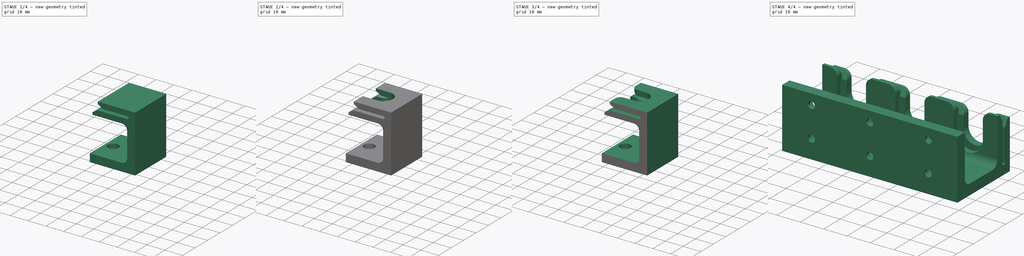
[diagram: build sequence overview — one tinted view per stage of 4, left to right]
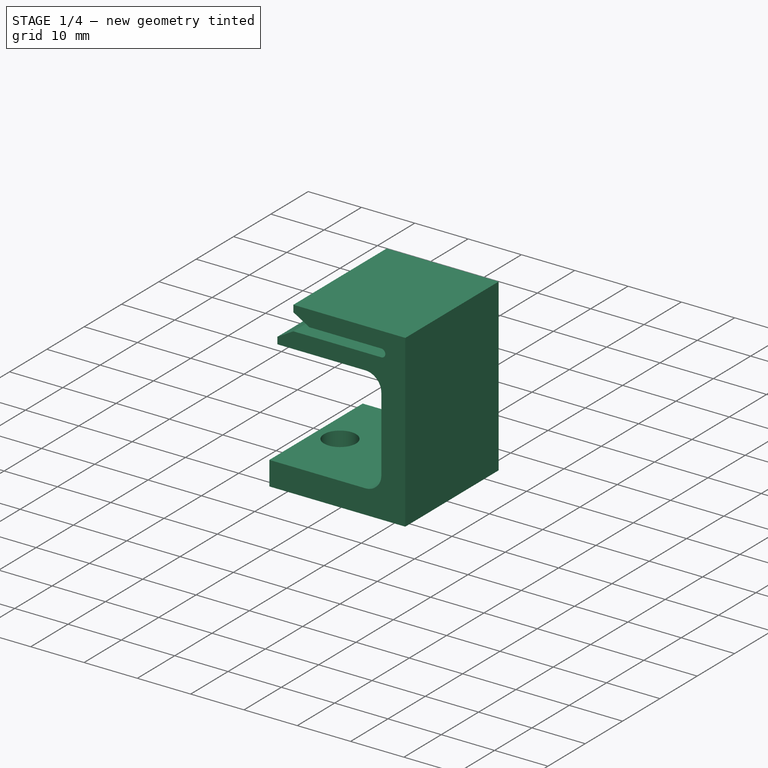
[diagram: stage 1 of 4 — iso view after this stage's code; geometry added in this stage tinted green]
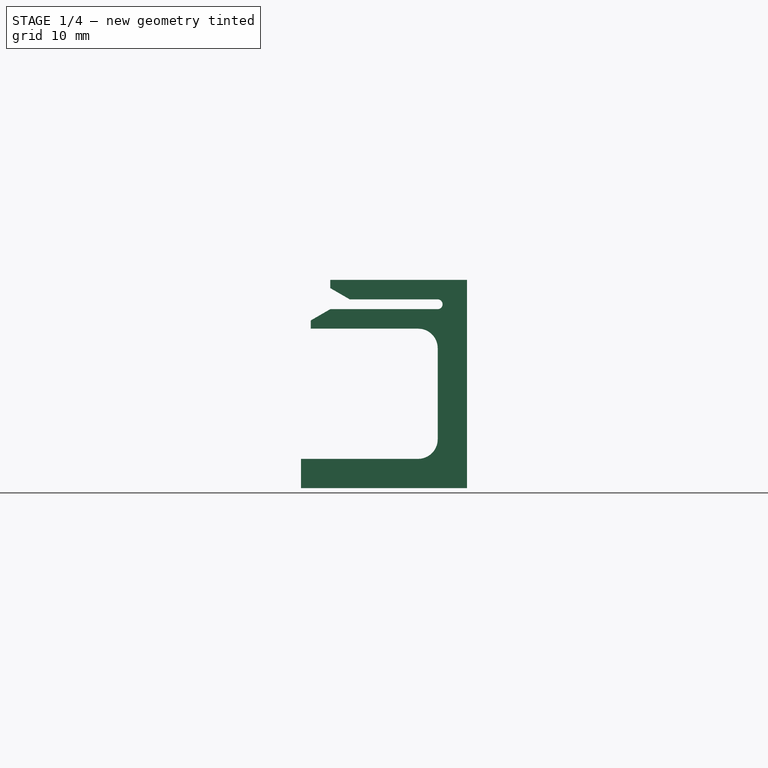
[diagram: stage 1 of 4 — front view after this stage's code; geometry added in this stage tinted green]
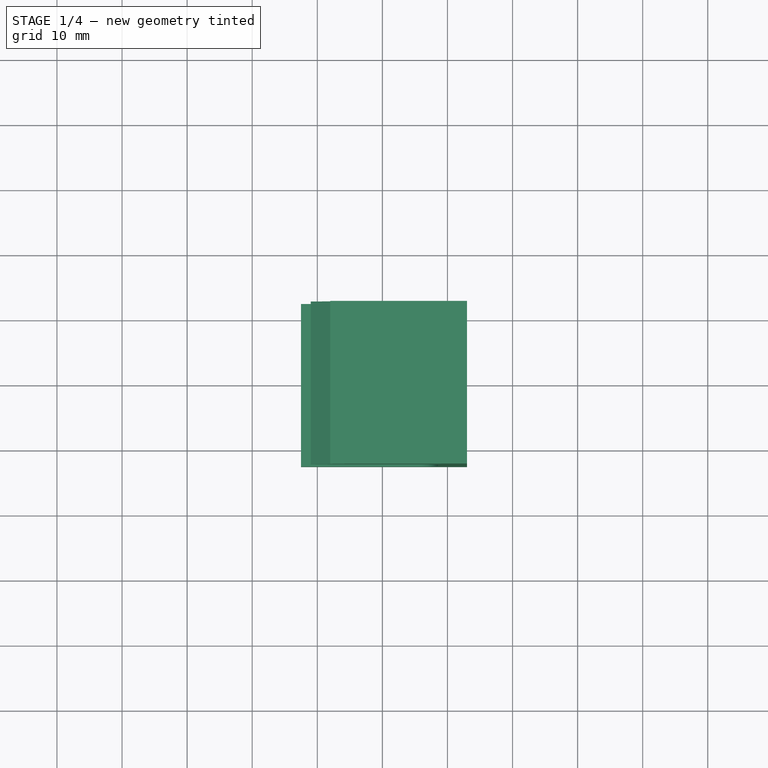
[diagram: stage 1 of 4 — top view after this stage's code; geometry added in this stage tinted green]
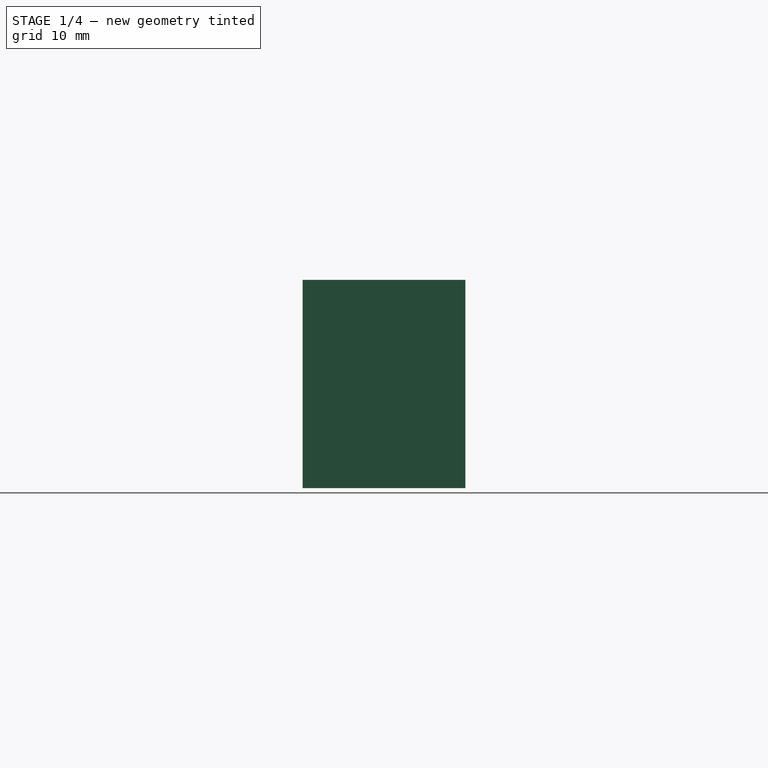
[diagram: stage 1 of 4 — right view after this stage's code; geometry added in this stage tinted green]
FCSTD DOCUMENT  (FreeCAD 0.15R4671 (Git))
Label: Juki_nozzle_changer_v2
License: CreativeCommons Attribution-ShareAlike
LicenseURL: http://creativecommons.org/licenses/by-sa/4.0/
objects: Sketcher::SketchObject×6, PartDesign::Pocket×5, Part::Mirroring×3, Part::Feature×1, PartDesign::Pad×1, PartDesign::Chamfer×1, PartDesign::Fillet×1, Part::MultiFuse×1
note: 25 computed .brp shape members not serialized (recipe doc carries the construction recipe); baked Part::Feature solids carry a one-line shape summary decoded from their .brp

FEATURE [Part::Feature] Compound002  label="Juki-503"
  Placement = pos=(0,0,2.5) rot=(0,0,1;0rad)
  shape: bbox 16 x 16 x 31 mm, 44 faces, 7 solids (baked)
FEATURE [Sketcher::SketchObject] Sketch
  Placement = pos=(0,0,0) rot=(1,0,0;1.5708rad)
  sketch-geometry (17):
    g0: LineSegment StartX=-8 StartY=24.5 StartZ=0 EndX=-8 EndY=23.2321 EndZ=0
    g1: LineSegment StartX=-5 StartY=21.5 StartZ=0 EndX=8.5 EndY=21.5 EndZ=0
    g2: LineSegment StartX=8.5 StartY=20 StartZ=0 EndX=-8 EndY=20 EndZ=0
    g3: LineSegment StartX=-11 StartY=18.2679 StartZ=0 EndX=-11 EndY=17 EndZ=0
    g4: LineSegment StartX=-11 StartY=17 StartZ=0 EndX=5.5 EndY=17 EndZ=0
    g5: LineSegment StartX=8.5 StartY=14 StartZ=0 EndX=8.5 EndY=-1.63656e-07 EndZ=0
    g6: LineSegment StartX=5.5 StartY=-3 StartZ=0 EndX=-12.5 EndY=-3 EndZ=0
    g7: LineSegment StartX=-12.5 StartY=-3 StartZ=0 EndX=-12.5 EndY=-7.5 EndZ=0
    g8: LineSegment StartX=-12.5 StartY=-7.5 StartZ=0 EndX=13 EndY=-7.5 EndZ=0
    g9: LineSegment StartX=13 StartY=-7.5 StartZ=0 EndX=13 EndY=24.5 EndZ=0
    g10: LineSegment StartX=13 StartY=24.5 StartZ=0 EndX=-8 EndY=24.5 EndZ=0
    g11: LineSegment [constr] StartX=8.5 StartY=-1.63656e-07 StartZ=0 EndX=13 EndY=-1.63656e-07 EndZ=0
    g12: ArcOfCircle CenterX=8.5 CenterY=20.75 CenterZ=0 NormalX=0 NormalY=0 NormalZ=1 Radius=0.75 StartAngle=4.71239 EndAngle=7.85398
    g13: ArcOfCircle CenterX=5.5 CenterY=0 CenterZ=0 NormalX=0 NormalY=0 NormalZ=1 Radius=3 StartAngle=4.71239 EndAngle=6.28319
    g14: ArcOfCircle CenterX=5.5 CenterY=14 CenterZ=0 NormalX=0 NormalY=0 NormalZ=1 Radius=3 StartAngle=0 EndAngle=1.5708
    g15: LineSegment StartX=-11 StartY=18.2679 StartZ=0 EndX=-8 EndY=20 EndZ=0
    g16: LineSegment StartX=-8 StartY=23.2321 StartZ=0 EndX=-5 EndY=21.5 EndZ=0
  constraints (52):
    c: Vertical(g0)
    c: Horizontal(g1)
    c: Horizontal(g2)
    c: Vertical(g3)
    c: Coincident(g3,g4)
    c: Horizontal(g4)
    c: Vertical(g5)
    c: Horizontal(g6)
    c: Coincident(g6,g7)
    c: Vertical(g7)
    c: Coincident(g7,g8)
    c: Horizontal(g8)
    c: Coincident(g8,g9)
    c: Vertical(g9)
    c: Coincident(g9,g10)
    c: Coincident(g10,g0)
    c: Horizontal(g10)
    c: DistanceY(g7) = -4.5
    c: PointOnObject(g11,g9)
    c: Horizontal(g11)
    c: Equal(g11,g7)
    c: DistanceX(g8) = 25.5
    c: Coincident(g12,g1)
    c: Coincident(g12,g2)
    c: Radius(g12) = 0.75
    c: Tangent(g1,g12)
    c: Tangent(g12,g2)
    c: DistanceX(g11) = 8.5
    c: Coincident(g5,g13)
    c: Coincident(g6,g13)
    c: Tangent(g13,g5)
    c: Tangent(g6,g13)
    c: Radius(g13) = 3
    c: DistanceY(g6) = -3
    c: Coincident(g11,g5)
    c: Tangent(g4,g14) = 1.5708
    c: Tangent(g5,g14) = 1.5708
    c: Equal(g14,g13)
    c: DistanceX(g2,g5) = 0
    c: DistanceY(g9) = 32
    c: Coincident(g2,g15)
    c: Coincident(g3,g15)
    c: Distance(g2,g4) = 3
    c: Angle(g3,g15) = 2.0944
    c: DistanceX(g4) = 16.5
    c: DistanceX(g2,g3) = -3
    c: DistanceX(g1,g0) = -16.5
    c: Distance(g1,g10) = 3
    c: Coincident(g0,g16)
    c: Coincident(g1,g16)
    c: Angle(g1,g16) = 2.61799
    c: DistanceX(g1,g0) = -3
FEATURE [PartDesign::Pad] Pad  label="Pad 1"
  Length = 25
  Length2 = 100
  Midplane = true
  Placement = pos=(0,0,0) rot=(1,0,0;1.5708rad)
  Sketch = -> Sketch
  Type = 0
FEATURE [Sketcher::SketchObject] Sketch003
  ExternalGeometry = -> [Pad]
  Placement = pos=(0,0,-7.5) rot=(1,0,0;3.14159rad)
  Support = -> Pad [Face3]
  sketch-geometry (2):
    g0: Circle CenterX=-8 CenterY=0 CenterZ=0 NormalX=0 NormalY=0 NormalZ=1 Radius=1.5
    g1: Circle CenterX=5 CenterY=0 CenterZ=0 NormalX=0 NormalY=0 NormalZ=1 Radius=1.5
  constraints (6):
    c: Radius(g0) = 1.5
    c: DistanceX(g1) = 5
    c: DistanceY(g1) = 0
    c: Distance(g0,g-3) = 4.5
    c: DistanceY(g0) = 0
    c: Equal(g0,g1)
FEATURE [PartDesign::Pocket] Pocket002
  Length = 10
  Placement = pos=(0,0,0) rot=(1,0,0;1.5708rad)
  Sketch = -> Sketch003
  Type = 0
FEATURE [Sketcher::SketchObject] Sketch004
  ExternalGeometry = -> [Pocket002]
  Placement = pos=(0,0,-3) rot=(0,0,1;3.14159rad)
  Support = -> Pocket002 [Face1]
  sketch-geometry (2):
    g0: Circle CenterX=-5 CenterY=0 CenterZ=0 NormalX=0 NormalY=0 NormalZ=1 Radius=3
    g1: Circle CenterX=8 CenterY=0 CenterZ=0 NormalX=0 NormalY=0 NormalZ=1 Radius=3
  constraints (4):
    c: Coincident(g0,g-3)
    c: Radius(g0) = 3
    c: Coincident(g1,g-4)
    c: Equal(g1,g0)
FEATURE [PartDesign::Pocket] Pocket003
  Length = 6
  Midplane = true
  Placement = pos=(0,0,0) rot=(1,0,0;1.5708rad)
  Sketch = -> Sketch004
  Type = 0
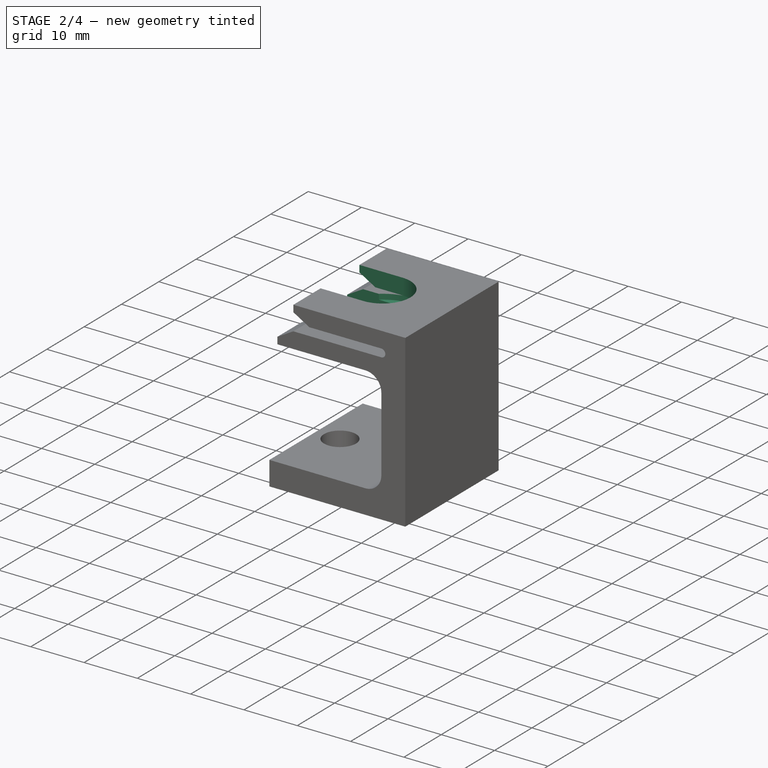
[diagram: stage 2 of 4 — iso view after this stage's code; geometry added in this stage tinted green]
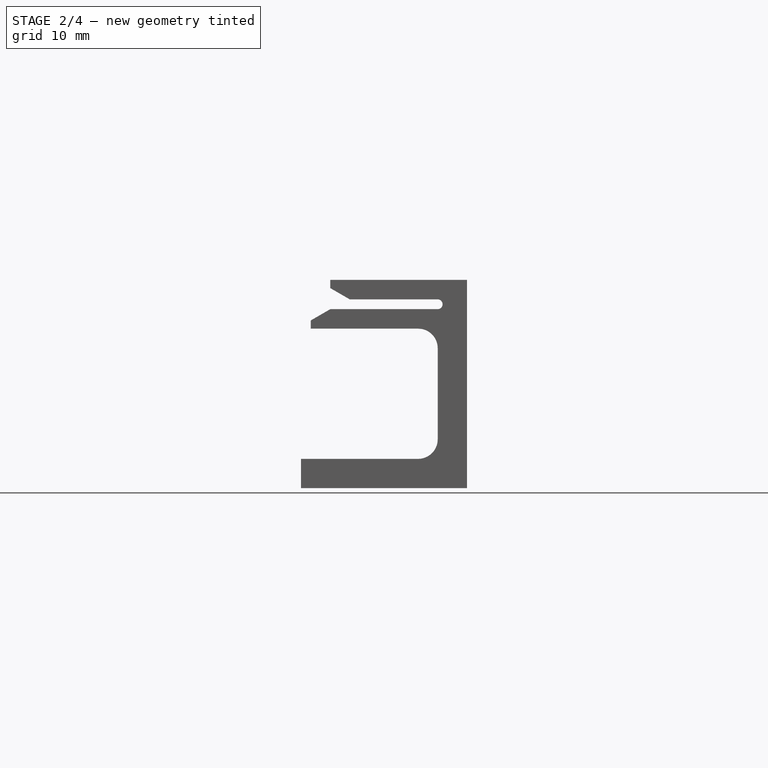
[diagram: stage 2 of 4 — front view after this stage's code; geometry added in this stage tinted green]
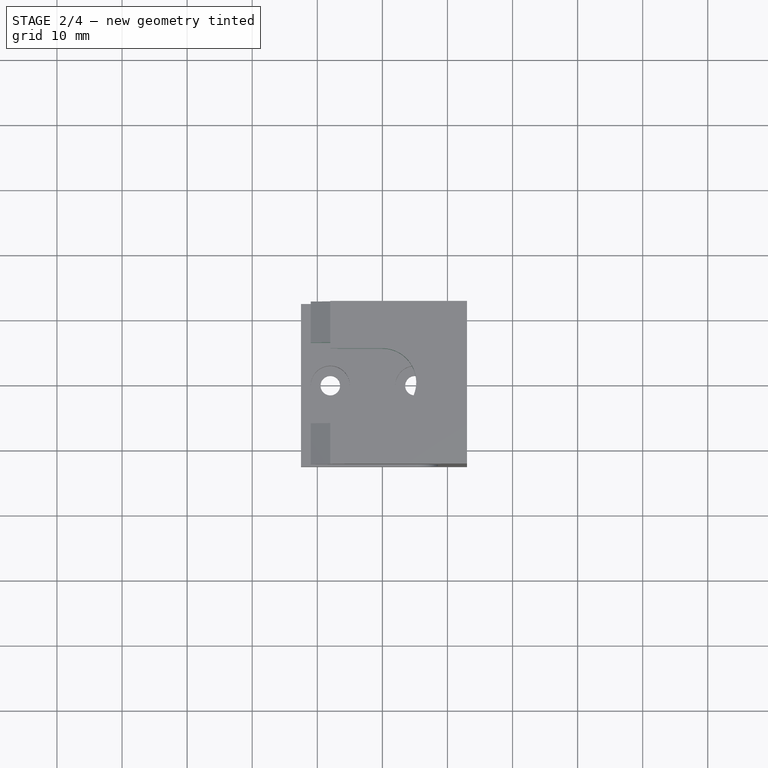
[diagram: stage 2 of 4 — top view after this stage's code; geometry added in this stage tinted green]
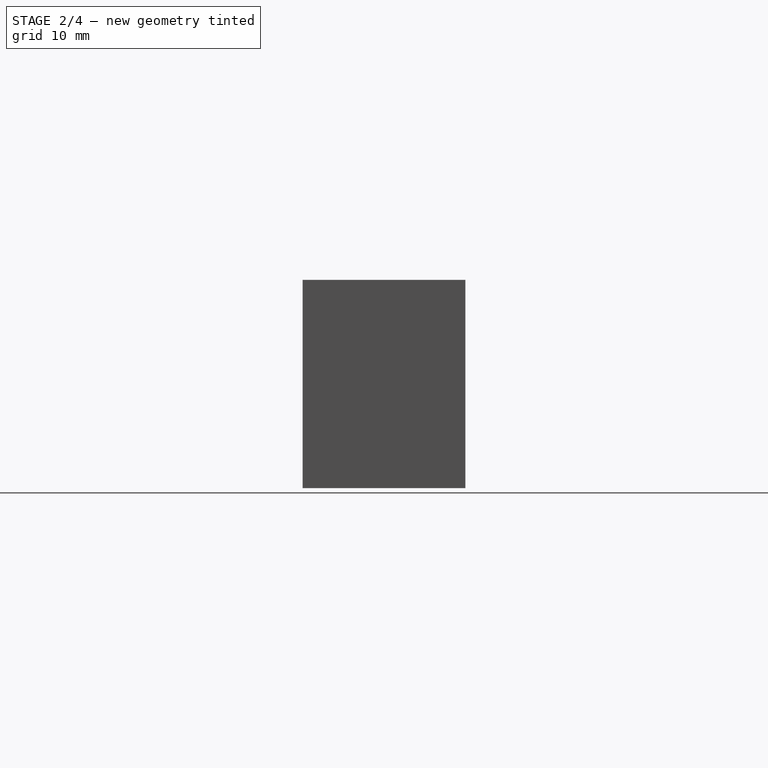
[diagram: stage 2 of 4 — right view after this stage's code; geometry added in this stage tinted green]
FEATURE [Sketcher::SketchObject] Sketch005
  Placement = pos=(0,0,17) rot=(1,0,0;3.14159rad)
  Support = -> Pocket003 [Face18]
  sketch-geometry (4):
    g0: ArcOfCircle CenterX=0 CenterY=0 CenterZ=0 NormalX=0 NormalY=0 NormalZ=1 Radius=6.2 StartAngle=4.71239 EndAngle=7.85398
    g1: ArcOfCircle CenterX=-20 CenterY=0 CenterZ=0 NormalX=0 NormalY=0 NormalZ=1 Radius=6.2 StartAngle=1.5708 EndAngle=4.71239
    g2: LineSegment StartX=3e-12 StartY=6.2 StartZ=0 EndX=-20 EndY=6.2 EndZ=0
    g3: LineSegment StartX=2e-12 StartY=-6.2 StartZ=0 EndX=-20 EndY=-6.2 EndZ=0
  constraints (9):
    c: Tangent(g0,g3) = 1.5708
    c: Tangent(g0,g2) = -1.5708
    c: Tangent(g2,g1) = -1.5708
    c: Tangent(g3,g1) = 1.5708
    c: Horizontal(g2)
    c: Equal(g0,g1)
    c: Coincident(g0,g-1)
    c: Radius(g0) = 6.2
    c: DistanceX(g2) = -20
FEATURE [PartDesign::Pocket] Pocket004
  Length = 7
  Midplane = true
  Placement = pos=(0,0,0) rot=(1,0,0;1.5708rad)
  Sketch = -> Sketch005
  Type = 0
FEATURE [Sketcher::SketchObject] Sketch006
  Placement = pos=(0,0,24.5) rot=(0,0,1;3.14159rad)
  Support = -> Pocket004 [Face10]
  sketch-geometry (4):
    g0: ArcOfCircle CenterX=0 CenterY=0 CenterZ=0 NormalX=0 NormalY=0 NormalZ=1 Radius=5.2 StartAngle=1.5708 EndAngle=4.71239
    g1: ArcOfCircle CenterX=20 CenterY=0 CenterZ=0 NormalX=0 NormalY=0 NormalZ=1 Radius=5.2 StartAngle=4.71239 EndAngle=7.85398
    g2: LineSegment StartX=2e-12 StartY=-5.2 StartZ=0 EndX=20 EndY=-5.2 EndZ=0
    g3: LineSegment StartX=-1e-12 StartY=5.2 StartZ=0 EndX=20 EndY=5.2 EndZ=0
  constraints (9):
    c: Tangent(g0,g3) = 1.5708
    c: Tangent(g0,g2) = -1.5708
    c: Tangent(g2,g1) = -1.5708
    c: Tangent(g3,g1) = 1.5708
    c: Horizontal(g2)
    c: Equal(g0,g1)
    c: Coincident(g0,g-1)
    c: Radius(g0) = 5.2
    c: DistanceX(g3) = 20
FEATURE [PartDesign::Pocket] Pocket005
  Length = 6
  Placement = pos=(0,0,0) rot=(1,0,0;1.5708rad)
  Sketch = -> Sketch006
  Type = 0
FEATURE [Sketcher::SketchObject] Sketch007
  Placement = pos=(0,0,20) rot=(0,0,1;3.14159rad)
  Support = -> Pocket005 [Face15]
  sketch-geometry (1):
    g0: Circle CenterX=0 CenterY=0 CenterZ=0 NormalX=0 NormalY=0 NormalZ=1 Radius=8
  constraints (2):
    c: Coincident(g0,g-1)
    c: Radius(g0) = 8
FEATURE [PartDesign::Pocket] Pocket
  Length = 1
  Placement = pos=(0,0,0) rot=(1,0,0;1.5708rad)
  Sketch = -> Sketch007
  Type = 0
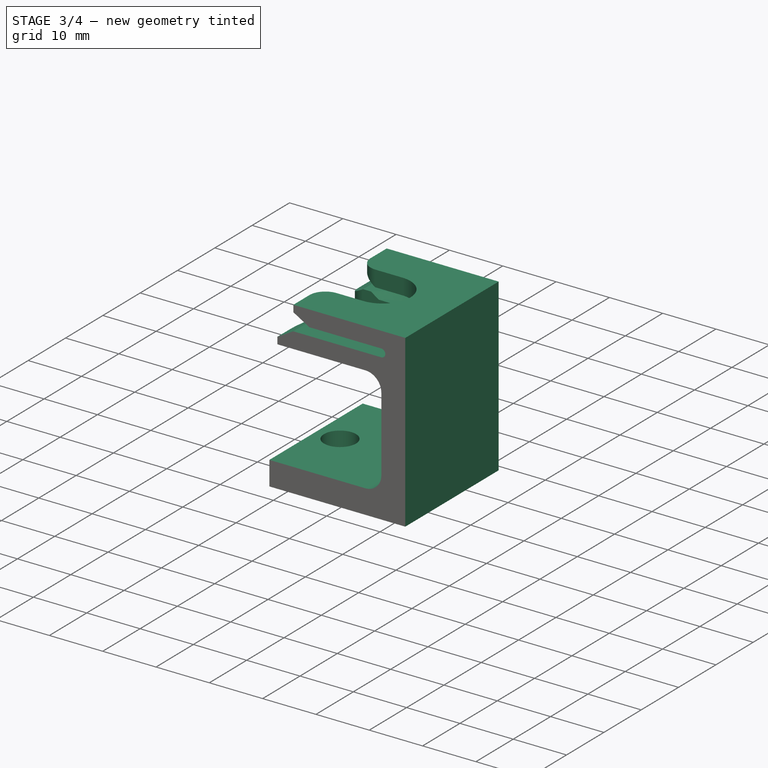
[diagram: stage 3 of 4 — iso view after this stage's code; geometry added in this stage tinted green]
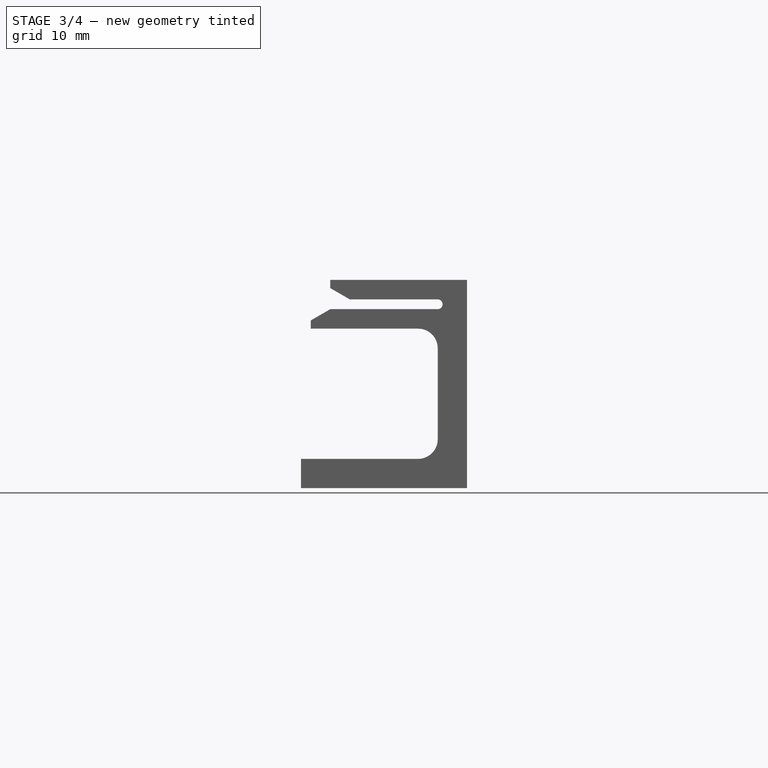
[diagram: stage 3 of 4 — front view after this stage's code; geometry added in this stage tinted green]
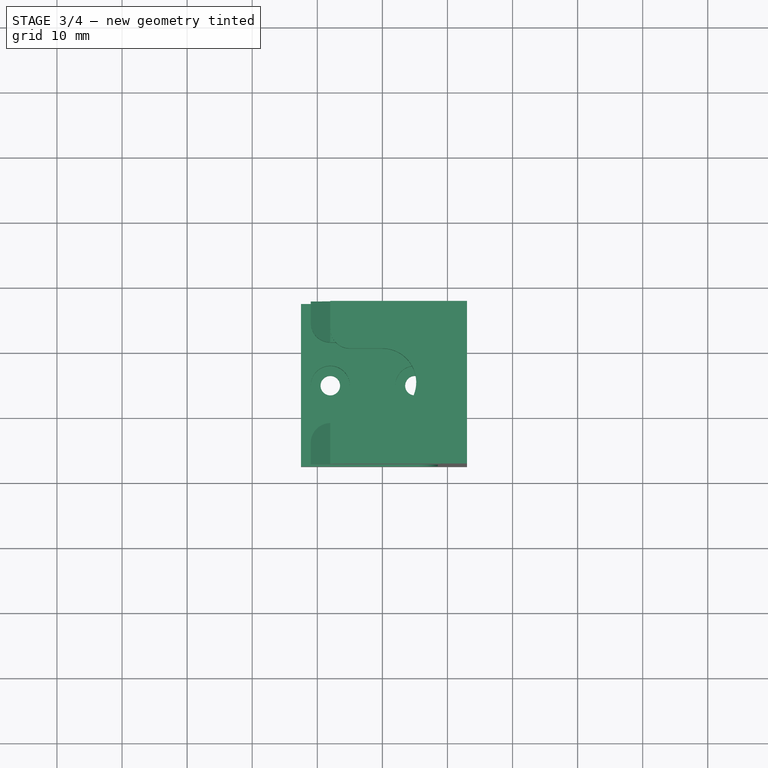
[diagram: stage 3 of 4 — top view after this stage's code; geometry added in this stage tinted green]
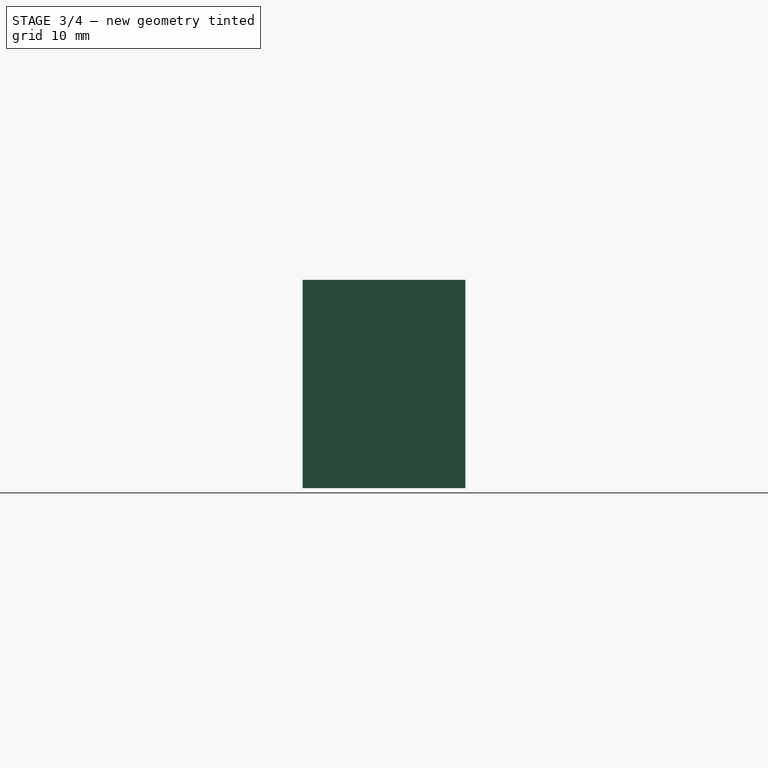
[diagram: stage 3 of 4 — right view after this stage's code; geometry added in this stage tinted green]
FEATURE [PartDesign::Chamfer] Chamfer
  Base = -> Pocket [Edge68]
  Placement = pos=(0,0,0) rot=(1,0,0;1.5708rad)
  Size = 0.999
FEATURE [PartDesign::Fillet] Fillet
  Base = -> Chamfer [Edge54,Edge94,Edge81,Edge101]
  Placement = pos=(0,0,0) rot=(1,0,0;1.5708rad)
  Radius = 3
FEATURE [Part::Mirroring] Part__Mirroring  label="Fillet (Mirror #1)"
  Base = (0,0,0)
  Normal = (0,1,0)
  Placement = pos=(0,25,0) rot=(0,0,1;0rad)
  Source = -> Fillet
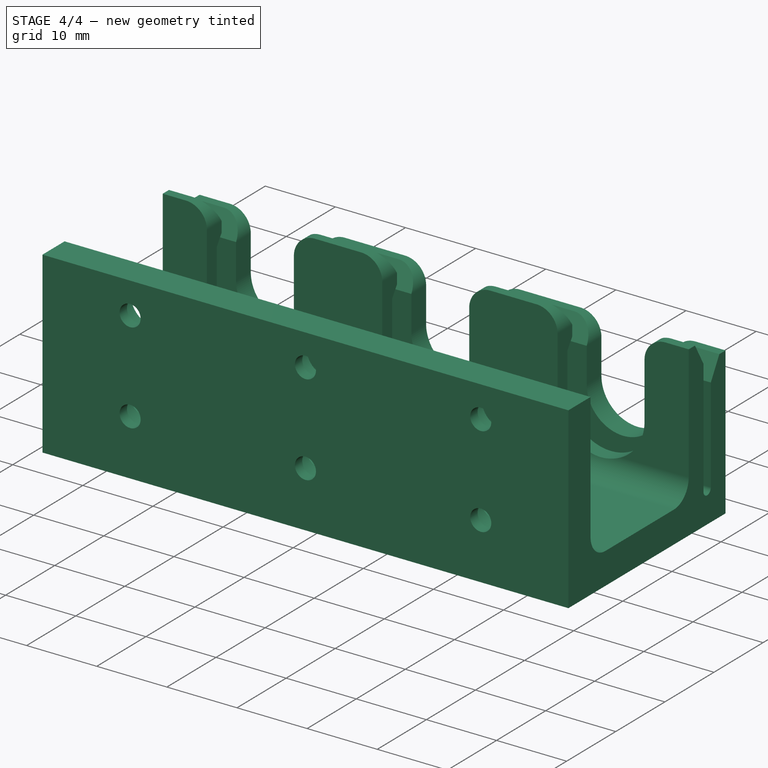
[diagram: stage 4 of 4 — iso view after this stage's code; geometry added in this stage tinted green]
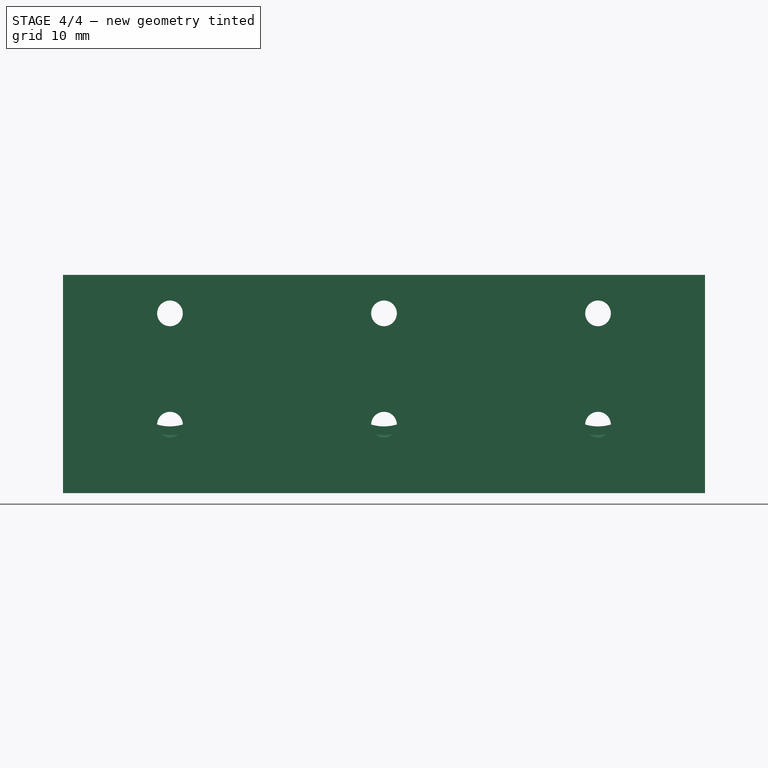
[diagram: stage 4 of 4 — front view after this stage's code; geometry added in this stage tinted green]
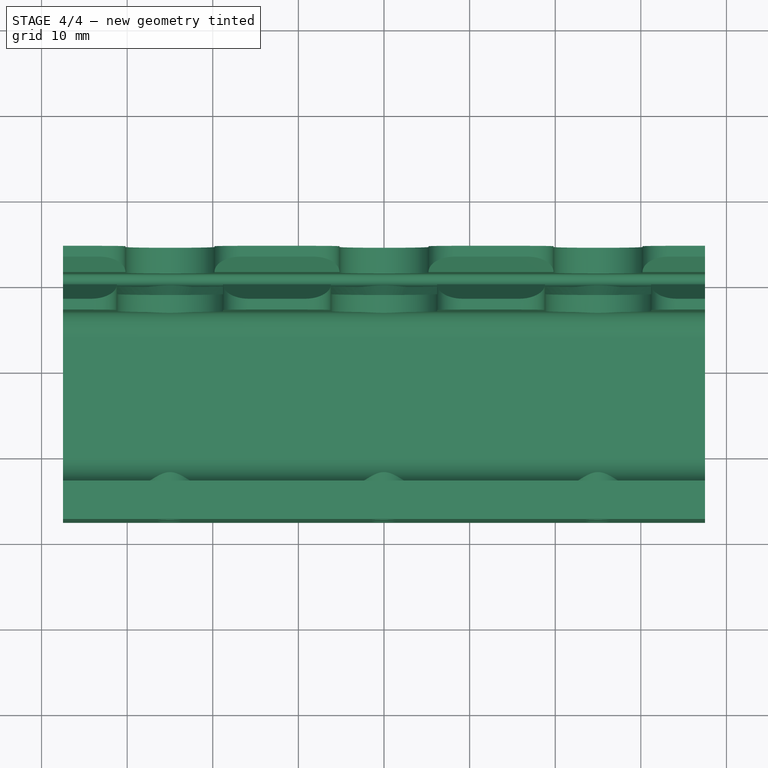
[diagram: stage 4 of 4 — top view after this stage's code; geometry added in this stage tinted green]
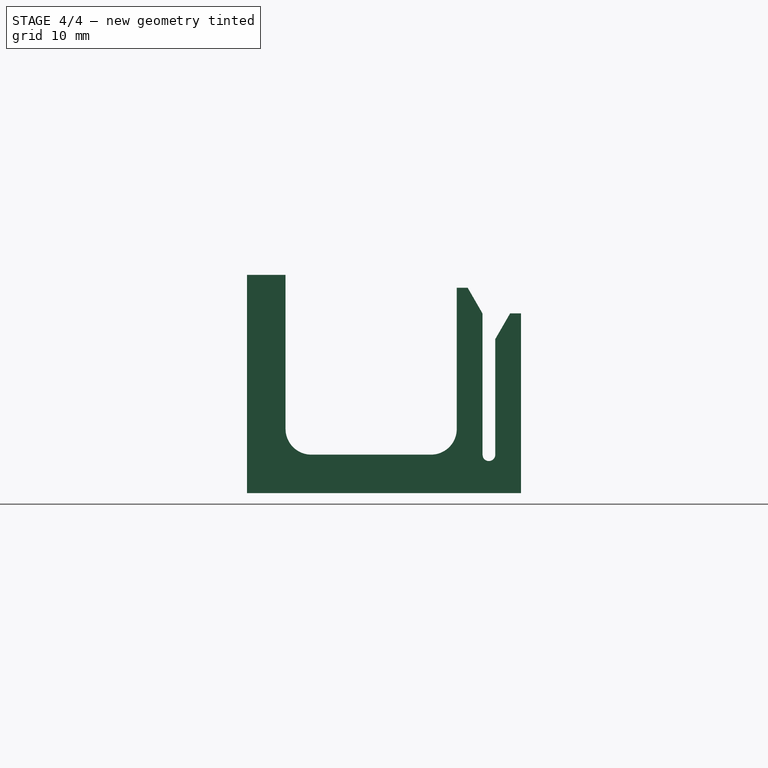
[diagram: stage 4 of 4 — right view after this stage's code; geometry added in this stage tinted green]
FEATURE [Part::Mirroring] Part__Mirroring001  label="Fillet (Mirror #2)"
  Base = (0,0,0)
  Normal = (0,1,0)
  Source = -> Part__Mirroring
FEATURE [Part::MultiFuse] Fusion
  Shapes = -> [Part__Mirroring001,Part__Mirroring,Fillet]
FEATURE [Part::Mirroring] Part__Mirroring002  label="Fusion (Mirror #3)"
  Base = (0,0,0)
  Normal = (0,0,1)
  Placement = pos=(0,60,0) rot=(0.57735,0.57735,-0.57735;2.0944rad)
  Source = -> Fusion
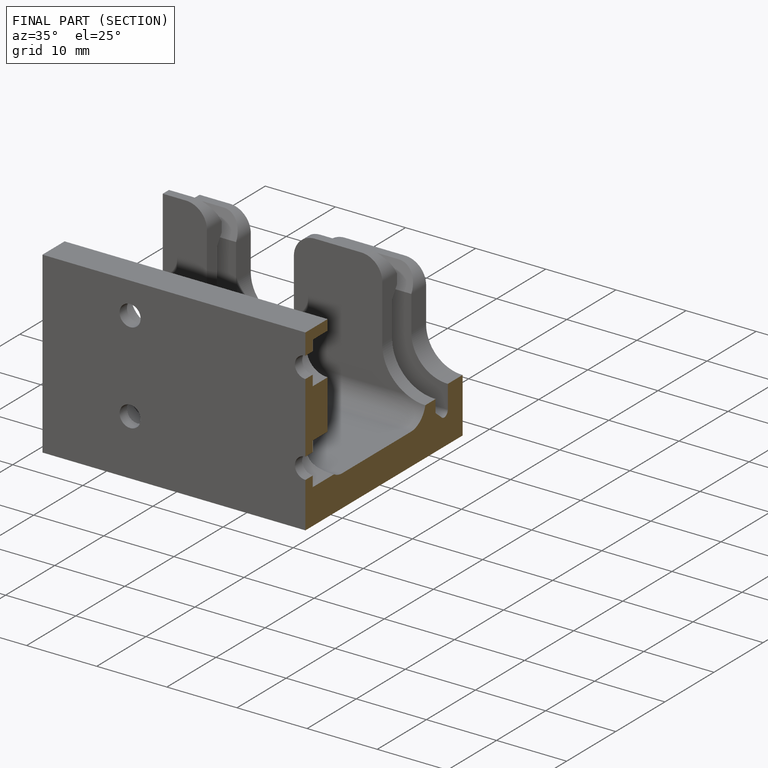
[diagram: finished part — half-section view (interior)]
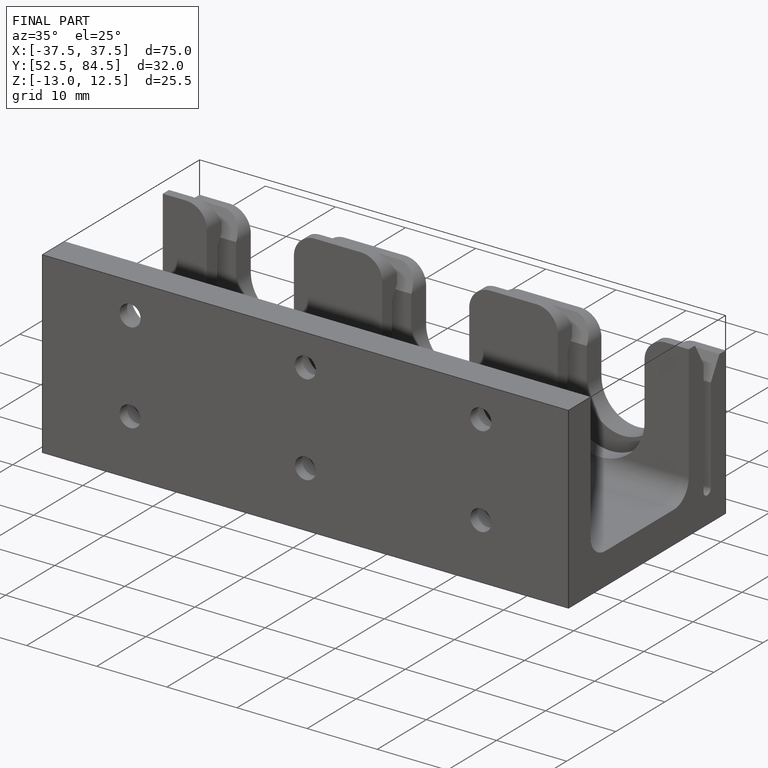
[diagram: finished part — iso view with bounding-box wireframe]
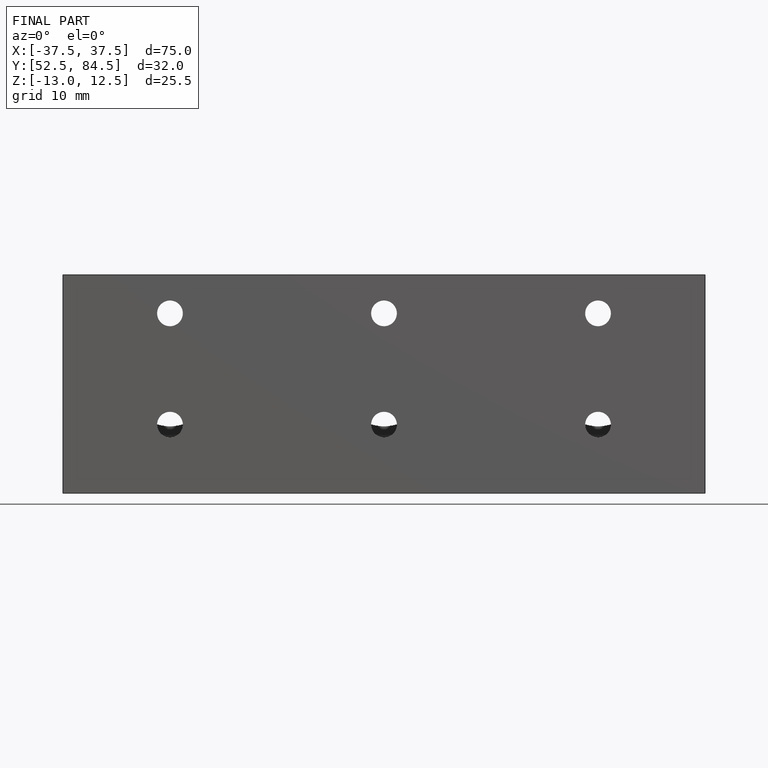
[diagram: finished part — front view with bounding-box wireframe]
